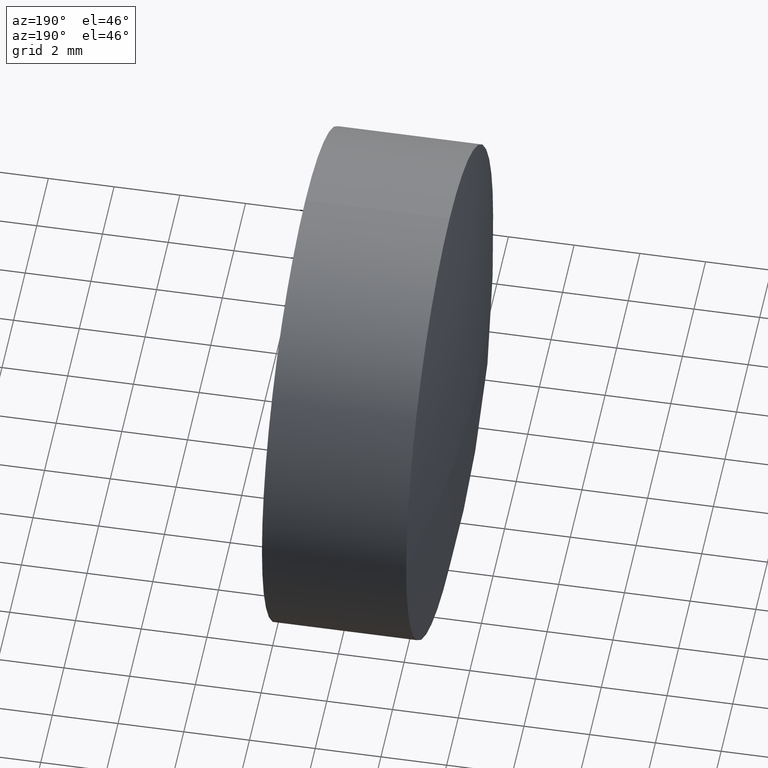
[diagram: clean part render]
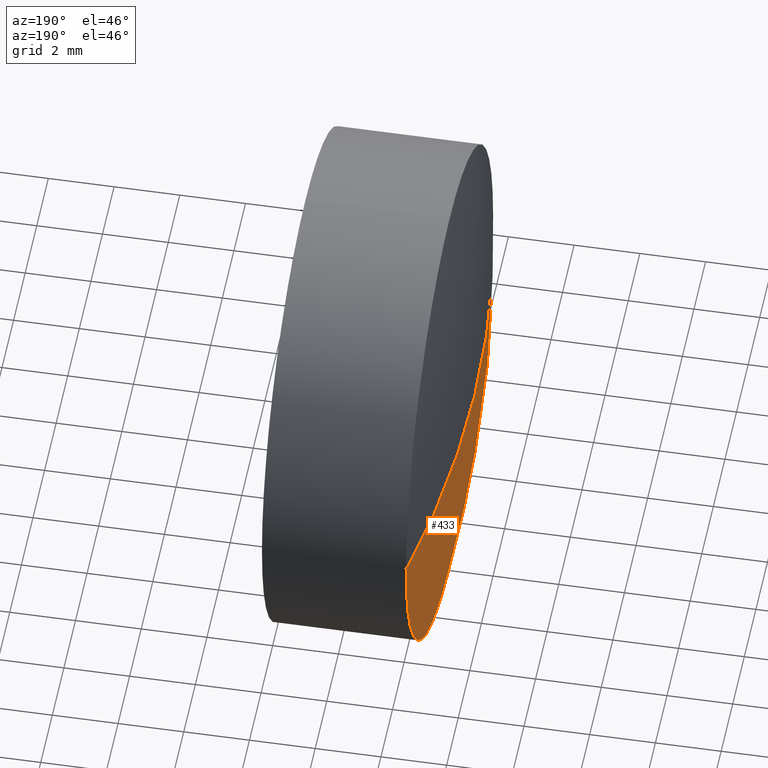
[diagram: same view with one face highlighted and labeled with its STEP entity id]
A machine part, auxiliary view. The second image highlights one B-rep face of the part: STEP entity #433.
In plain terms, the highlighted spherical surface has radius 37.23 mm.
Its self-contained STEP definition (entity closure, byte-faithful):
#10 = CARTESIAN_POINT ( 'NONE',  ( -88.70484587419444722, 2.634028287947922653, -9.184850993605179499E-16 ) ) ;
#11 = ORIENTED_EDGE ( 'NONE', *, *, #293, .T. ) ;
#32 = CARTESIAN_POINT ( 'NONE',  ( -88.70484587419444722, 10.13402828794794708, 0.000000000000000000 ) ) ;
#34 = SPHERICAL_SURFACE ( 'NONE', #290, 37.22999999999999687 ) ;
#35 = AXIS2_PLACEMENT_3D ( 'NONE', #83, #42, #108 ) ;
#36 = DIRECTION ( 'NONE',  ( 0.000000000000000000, 1.000000000000000000, 0.000000000000000000 ) ) ;
#40 = VERTEX_POINT ( 'NONE', #10 ) ;
#42 = DIRECTION ( 'NONE',  ( -0.000000000000000000, 0.000000000000000000, 1.000000000000000000 ) ) ;
#47 = EDGE_CURVE ( 'NONE', #308, #301, #434, .T. ) ;
#49 = CIRCLE ( 'NONE', #228, 7.500000000000000000 ) ;
#54 = AXIS2_PLACEMENT_3D ( 'NONE', #125, #330, #159 ) ;
#64 = EDGE_CURVE ( 'NONE', #308, #337, #399, .T. ) ;
#83 = CARTESIAN_POINT ( 'NONE',  ( -52.23810897602929515, 10.13402828794794708, 0.000000000000000000 ) ) ;
#108 = DIRECTION ( 'NONE',  ( 1.000000000000000000, 0.000000000000000000, 0.000000000000000000 ) ) ;
#124 = CARTESIAN_POINT ( 'NONE',  ( -88.70484587419444722, 10.13402828794794708, 0.000000000000000000 ) ) ;
#125 = CARTESIAN_POINT ( 'NONE',  ( -52.23810897602929515, 10.13402828794794708, 0.000000000000000000 ) ) ;
#138 = EDGE_LOOP ( 'NONE', ( #214, #446, #11, #441 ) ) ;
#151 = DIRECTION ( 'NONE',  ( -1.000000000000000000, -0.000000000000000000, -0.000000000000000000 ) ) ;
#159 = DIRECTION ( 'NONE',  ( 0.000000000000000000, 1.000000000000000000, 1.224646799147353207E-16 ) ) ;
#170 = FACE_OUTER_BOUND ( 'NONE', #138, .T. ) ;
#172 = DIRECTION ( 'NONE',  ( -0.000000000000000000, 0.000000000000000000, -1.000000000000000000 ) ) ;
#203 = DIRECTION ( 'NONE',  ( 0.000000000000000000, 0.000000000000000000, 1.000000000000000000 ) ) ;
#204 = CARTESIAN_POINT ( 'NONE',  ( -52.23810897602929515, 10.13402828794794708, 0.000000000000000000 ) ) ;
#205 = CARTESIAN_POINT ( 'NONE',  ( -88.70484587419444722, 17.63402828794797017, 0.000000000000000000 ) ) ;
#214 = ORIENTED_EDGE ( 'NONE', *, *, #47, .T. ) ;
#228 = AXIS2_PLACEMENT_3D ( 'NONE', #32, #275, #203 ) ;
#238 = CARTESIAN_POINT ( 'NONE',  ( -89.46810897602929913, 10.13402828794794885, 0.000000000000000000 ) ) ;
#268 = CARTESIAN_POINT ( 'NONE',  ( -88.70484587419444722, 10.13402828794794885, -7.500000000000000000 ) ) ;
#275 = DIRECTION ( 'NONE',  ( -1.000000000000000000, -0.000000000000000000, -0.000000000000000000 ) ) ;
#286 = DIRECTION ( 'NONE',  ( 0.000000000000000000, 0.000000000000000000, 1.000000000000000000 ) ) ;
#290 = AXIS2_PLACEMENT_3D ( 'NONE', #204, #172, #36 ) ;
#293 = EDGE_CURVE ( 'NONE', #40, #337, #386, .T. ) ;
#301 = VERTEX_POINT ( 'NONE', #268 ) ;
#308 = VERTEX_POINT ( 'NONE', #205 ) ;
#330 = DIRECTION ( 'NONE',  ( 0.000000000000000000, 1.224646799147353207E-16, -1.000000000000000000 ) ) ;
#337 = VERTEX_POINT ( 'NONE', #238 ) ;
#375 = AXIS2_PLACEMENT_3D ( 'NONE', #124, #151, #286 ) ;
#386 = CIRCLE ( 'NONE', #54, 37.22999999999999687 ) ;
#399 = CIRCLE ( 'NONE', #35, 37.22999999999999687 ) ;
#415 = EDGE_CURVE ( 'NONE', #301, #40, #49, .T. ) ;
#433 = ADVANCED_FACE ( 'NONE', ( #170 ), #34, .T. ) ;
#434 = CIRCLE ( 'NONE', #375, 7.500000000000000000 ) ;
#441 = ORIENTED_EDGE ( 'NONE', *, *, #64, .F. ) ;
#446 = ORIENTED_EDGE ( 'NONE', *, *, #415, .T. ) ;